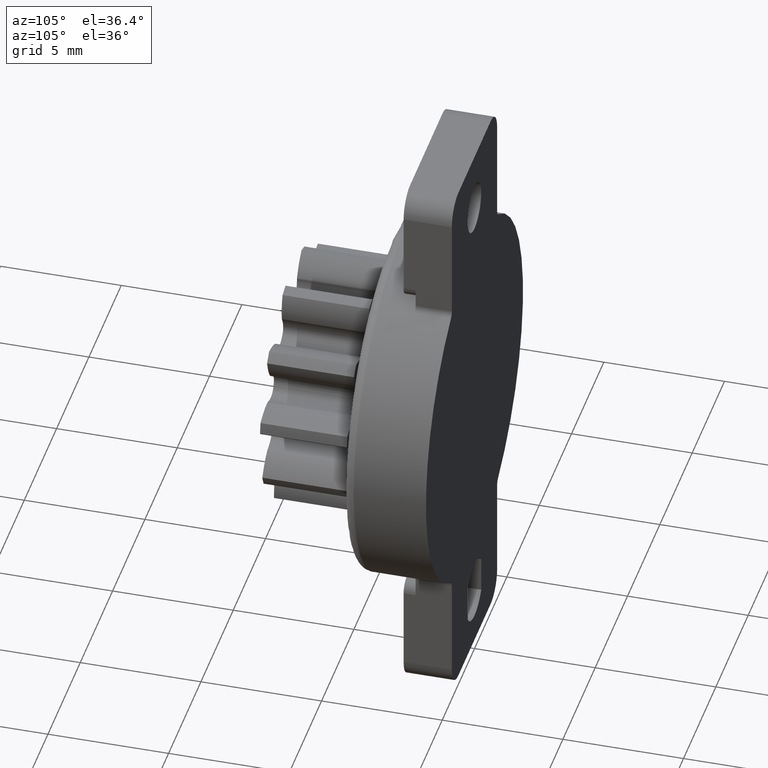
[diagram: clean part render]
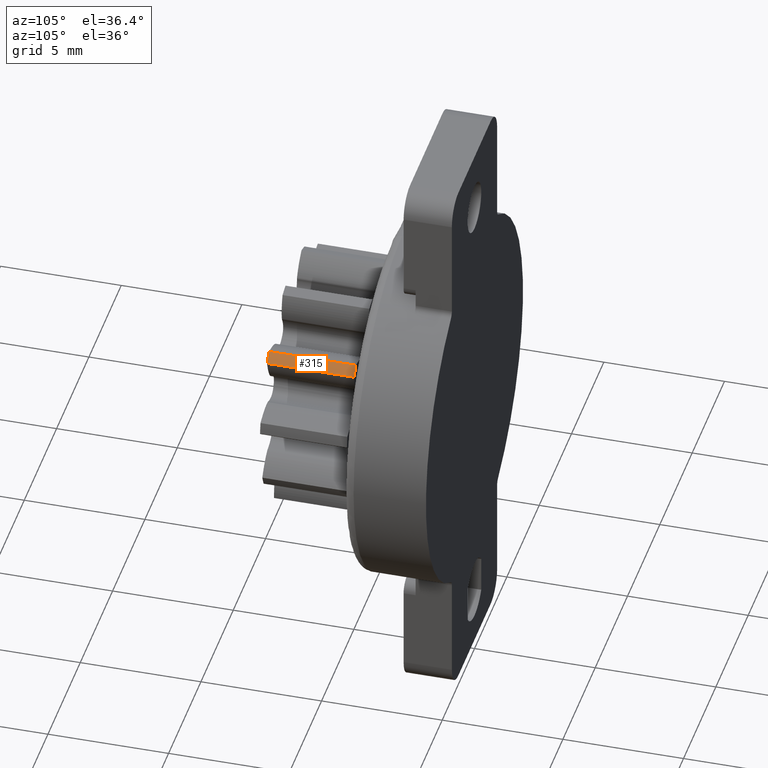
[diagram: same view with one face highlighted and labeled with its STEP entity id]
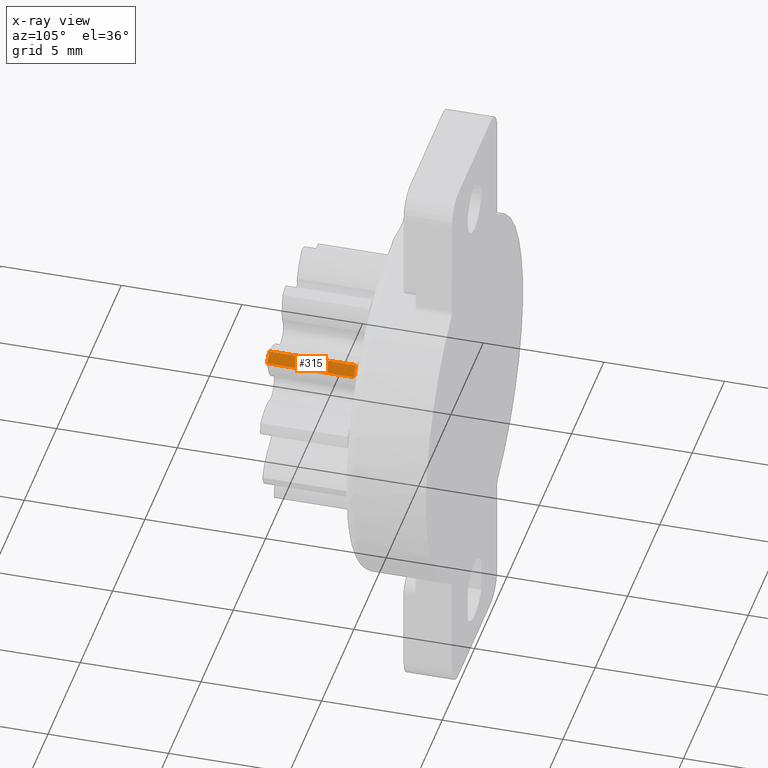
[diagram: x-ray of the same camera — body ghosted, the highlighted face saturated]
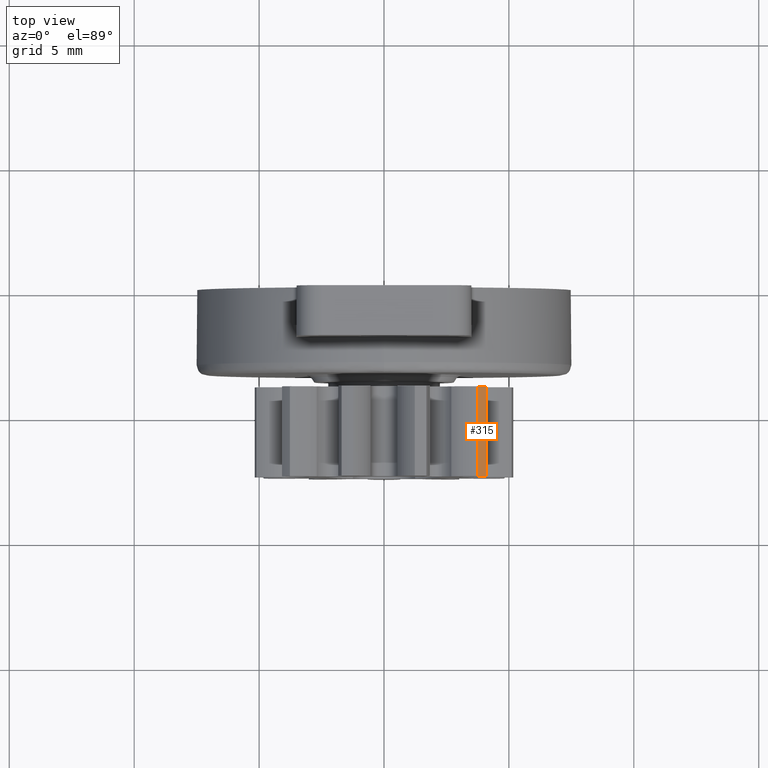
[diagram: same view with one face highlighted and labeled with its STEP entity id]
A machine part, auxiliary view. The second image highlights one B-rep face of the part: STEP entity #315.
The next image is the same camera in x-ray: the body ghosted, the highlighted face saturated — about 0% of this face is hidden behind the body in this view.
A second angle (top view) of the same face is appended — the face is thin or edge-on in the first view.
In plain terms, the highlighted cylindrical surface (partial cylindrical patch) has radius 5.2 mm, axis along (-0, -1, -0).
Its self-contained STEP definition (entity closure, byte-faithful):
#315=ADVANCED_FACE('',(#3441),#3440,.T.);
#3440=CYLINDRICAL_SURFACE('',#8516,5.20000049591E+00);
#3441=FACE_OUTER_BOUND('',#8517,.T.);
#8513=CARTESIAN_POINT('',(0.00000000000E+00,-1.00390000000E+03,0.00000000000E+00));
#8514=DIRECTION('',(-0.00000000000E+00,-1.00000000000E+00,-0.00000000000E+00));
#8515=DIRECTION('',(-0.00000000000E+00,0.00000000000E+00,-1.00000000000E+00));
#8516=AXIS2_PLACEMENT_3D('',#8513,#8514,#8515);
#8517=EDGE_LOOP('',(#11608,#11609,#11610,#11611));
#11608=ORIENTED_EDGE('',*,*,#15106,.T.);
#11609=ORIENTED_EDGE('',*,*,#15105,.F.);
#11610=ORIENTED_EDGE('',*,*,#15107,.F.);
#11611=ORIENTED_EDGE('',*,*,#15108,.T.);
#15105=EDGE_CURVE('',#21723,#21716,#21730,.T.);
#15106=EDGE_CURVE('',#21736,#21716,#21737,.T.);
#15107=EDGE_CURVE('',#21743,#21723,#21744,.T.);
#15108=EDGE_CURVE('',#21743,#21736,#21750,.T.);
#21716=VERTEX_POINT('',#32035);
#21723=VERTEX_POINT('',#32039);
#21730=LINE('',#32043,#32044);
#21736=VERTEX_POINT('',#32046);
#21737=CIRCLE('',#32050,5.20000049591E+00);
#21743=VERTEX_POINT('',#32051);
#21744=CIRCLE('',#32055,5.20000049591E+00);
#21750=LINE('',#32056,#32057);
#32035=CARTESIAN_POINT('',(3.76706925562E+00,-3.90000000000E+00,3.58457729459E+00));
#32039=CARTESIAN_POINT('',(3.76706925562E+00,-7.50000000000E+00,3.58457729459E+00));
#32043=CARTESIAN_POINT('',(3.76706925562E+00,-7.50000000000E+00,3.58457729459E+00));
#32044=VECTOR('',#32045,3.60000000000E+00);
#32045=DIRECTION('',(0.00000000000E+00,1.00000000000E+00,0.00000000000E+00));
#32046=CARTESIAN_POINT('',(4.08419800000E+00,-3.90000000000E+00,3.21858820000E+00));
#32047=CARTESIAN_POINT('',(0.00000000000E+00,-3.90000000000E+00,0.00000000000E+00));
#32048=DIRECTION('',(0.00000000000E+00,-1.00000000000E+00,0.00000000000E+00));
#32049=DIRECTION('',(-0.00000000000E+00,-0.00000000000E+00,1.00000000000E+00));
#32050=AXIS2_PLACEMENT_3D('',#32047,#32048,#32049);
#32051=CARTESIAN_POINT('',(4.08419800000E+00,-7.50000000000E+00,3.21858820000E+00));
#32052=CARTESIAN_POINT('',(0.00000000000E+00,-7.50000000000E+00,0.00000000000E+00));
#32053=DIRECTION('',(0.00000000000E+00,-1.00000000000E+00,0.00000000000E+00));
#32054=DIRECTION('',(-0.00000000000E+00,-0.00000000000E+00,1.00000000000E+00));
#32055=AXIS2_PLACEMENT_3D('',#32052,#32053,#32054);
#32056=CARTESIAN_POINT('',(4.08419800000E+00,-7.50000000000E+00,3.21858820000E+00));
#32057=VECTOR('',#32058,3.60000000000E+00);
#32058=DIRECTION('',(0.00000000000E+00,1.00000000000E+00,0.00000000000E+00));